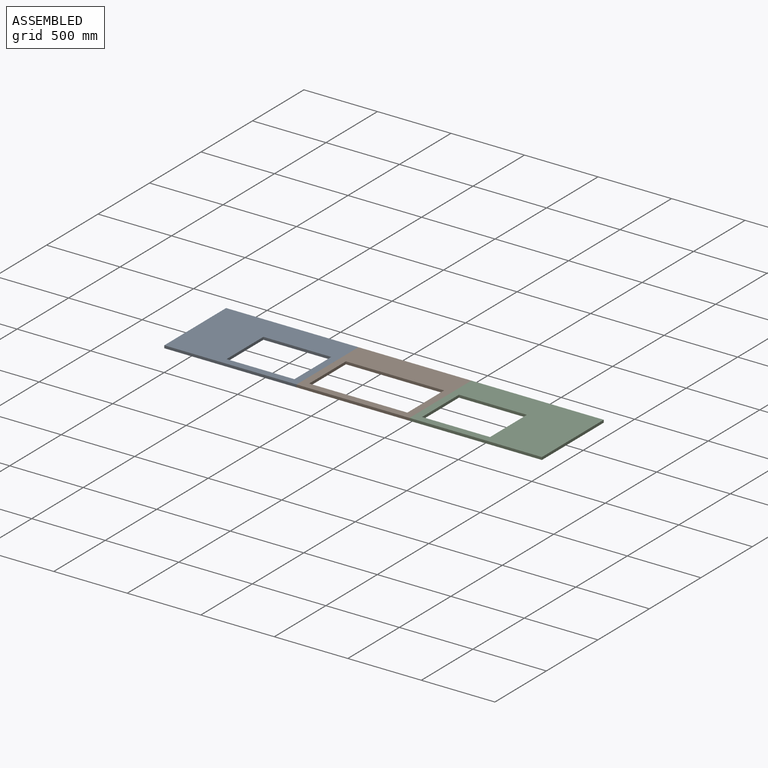
[diagram: assembled view]
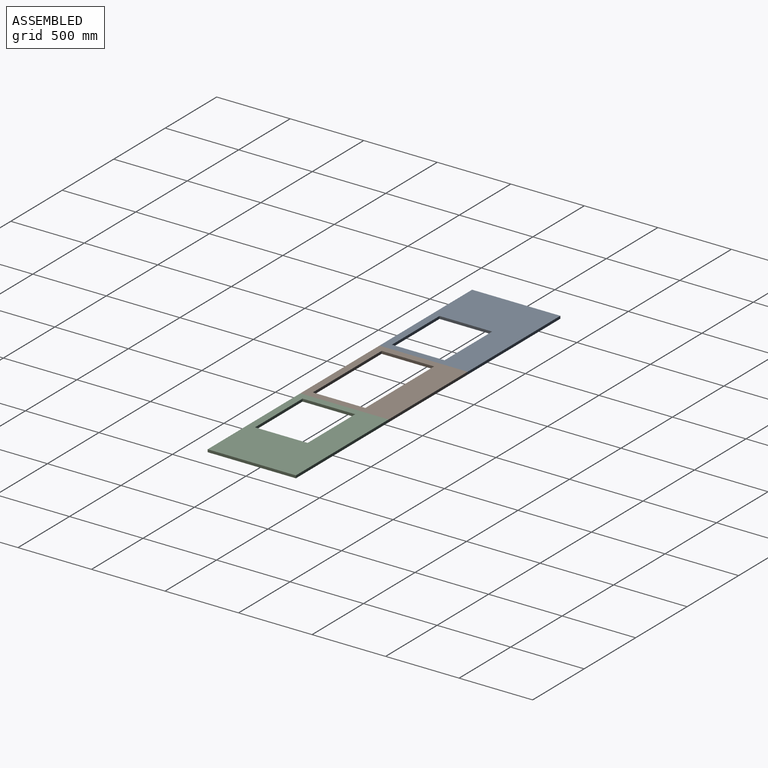
[diagram: assembled view, second angle]
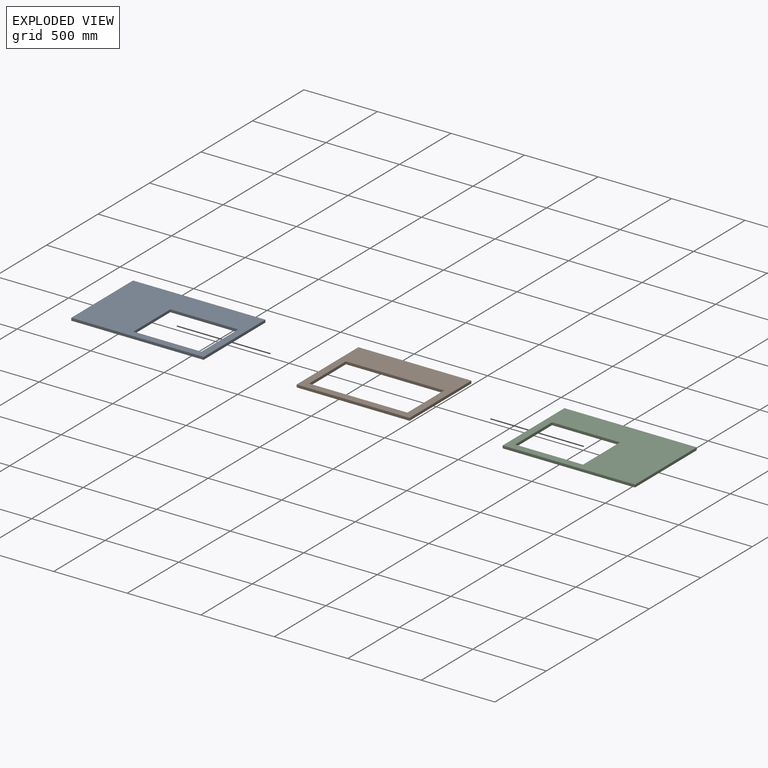
[diagram: exploded view]
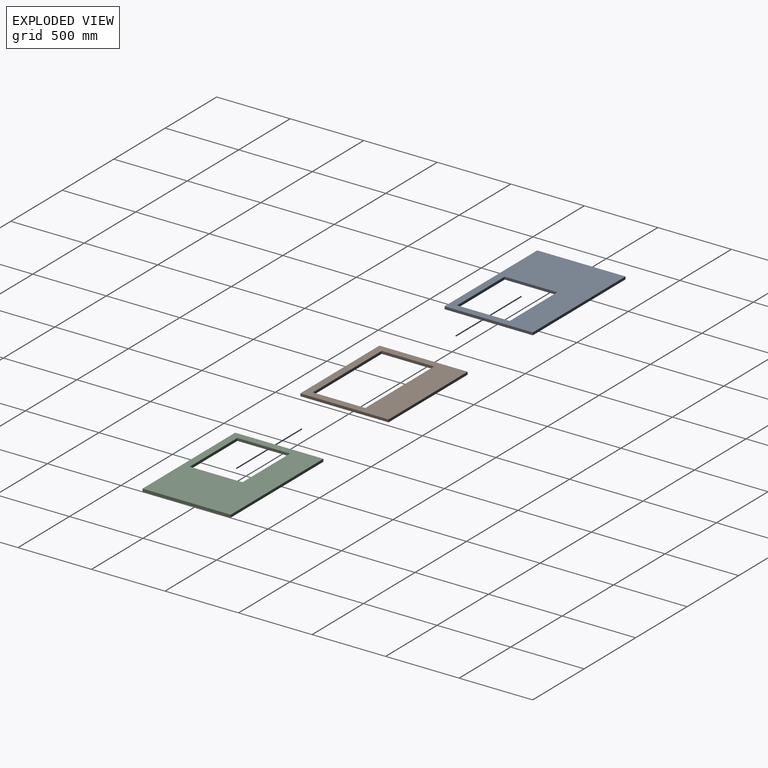
[diagram: exploded view, second angle]
ASSEMBLY  parts=3 mates=2
PART A: 10 faces, bbox 900x600x18 mm
  f0: plane 358x18mm, normal (-1,0,0), area 6444mm2, adj f1,f7,f8,f9
  f1: plane 462x18mm, normal (0,1,0), area 8316mm2, adj f0,f2,f8,f9
  f2: plane 358x18mm, normal (1,0,0), area 6444mm2, adj f1,f7,f8,f9
  f3: plane 900x18mm, normal (0,-1,0), area 16200mm2, adj f4,f6,f8,f9
  f4: plane 600x18mm, normal (1,0,0), area 10800mm2, adj f3,f5,f8,f9
  f5: plane 900x18mm, normal (0,1,0), area 16200mm2, adj f4,f6,f8,f9
  f6: plane 600x18mm, normal (-1,0,0), area 10800mm2, adj f3,f5,f8,f9
  f7: plane 462x18mm, normal (0,-1,0), area 8316mm2, adj f0,f2,f8,f9
  f8: plane 900x600mm, normal (0,0,1), area 374604mm2, adj f0,f1,f2,f3,f4,f5,f6,f7
  f9: plane 900x600mm, normal (0,0,-1), area 374604mm2, adj f0,f1,f2,f3,f4,f5,f6,f7
PART B: 10 faces, bbox 768x600x18 mm
  f0: plane 768x18mm, normal (0,-1,0), area 13824mm2, adj f1,f7,f8,f9
  f1: plane 600x18mm, normal (1,0,0), area 10800mm2, adj f0,f2,f8,f9
  f2: plane 768x18mm, normal (0,1,0), area 13824mm2, adj f1,f7,f8,f9
  f3: plane 357x18mm, normal (-1,0,0), area 6426mm2, adj f4,f6,f8,f9
  f4: plane 668x18mm, normal (0,1,0), area 12024mm2, adj f3,f5,f8,f9
  f5: plane 357x18mm, normal (1,0,0), area 6426mm2, adj f4,f6,f8,f9
  f6: plane 668x18mm, normal (0,-1,0), area 12024mm2, adj f3,f5,f8,f9
  f7: plane 600x18mm, normal (-1,0,0), area 10800mm2, adj f0,f2,f8,f9
  f8: plane 768x600mm, normal (0,0,1), area 222324mm2, adj f0,f1,f2,f3,f4,f5,f6,f7
  f9: plane 768x600mm, normal (0,0,-1), area 222324mm2, adj f0,f1,f2,f3,f4,f5,f6,f7
PART C: same geometry as A
PLACE A t=(-34.18,-77.42,-17.6)mm
PLACE B t=(649.82,-77.92,-17.6)mm
PLACE C rot(axis=(0,-1,0),180deg) t=(1333.82,-77.42,0.4)mm
MATE fastened A.f4 <-> B.f7  axis (1,0,0) through (265.82,-6.42,-8.6)mm
MATE fastened C.f4 <-> B.f1  axis (-1,0,0) through (1033.82,-6.42,-8.6)mm
